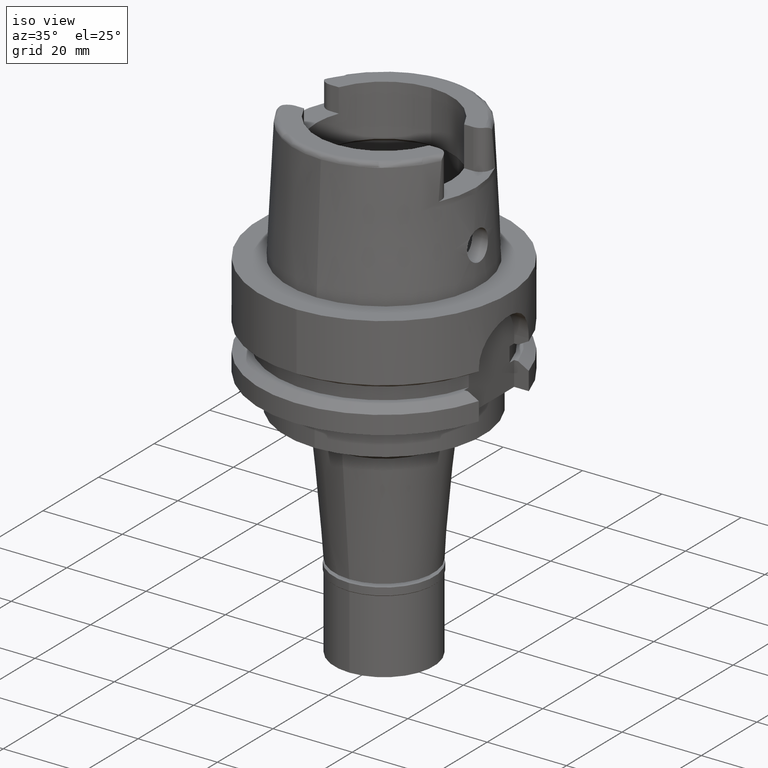
[diagram: clean part render]
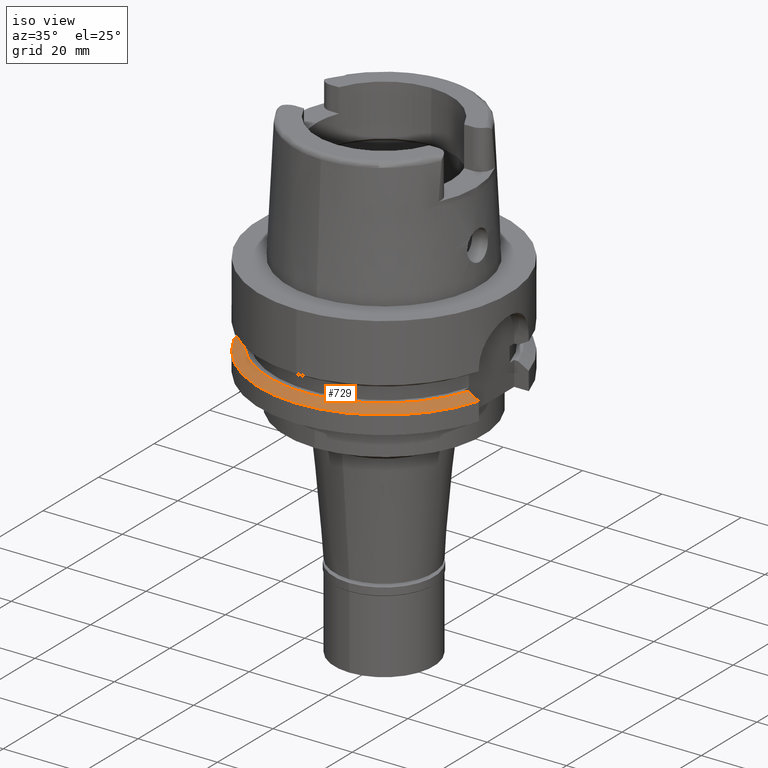
[diagram: same view with one face highlighted and labeled with its STEP entity id]
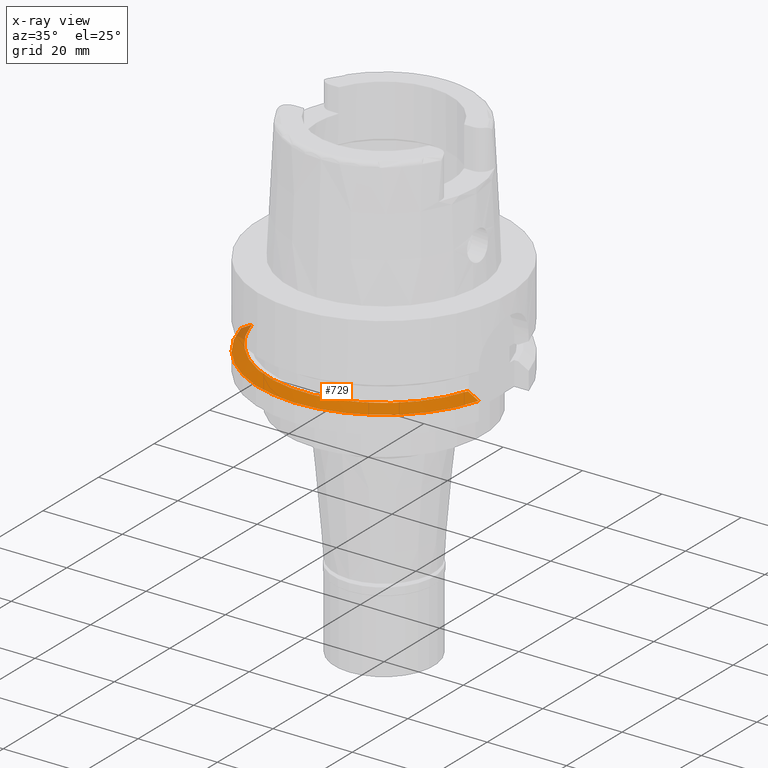
[diagram: x-ray of the same camera — body ghosted, the highlighted face saturated]
A machine part, iso view. The second image highlights one B-rep face of the part: STEP entity #729.
The next image is the same camera in x-ray: the body ghosted, the highlighted face saturated — about 3% of this face is hidden behind the body in this view.
In plain terms, the highlighted conical surface has half-angle 60 deg.
Its self-contained STEP definition (entity closure, byte-faithful):
#170 = CIRCLE ( 'NONE', #2266, 31.49999999999999645 ) ;
#194 = EDGE_CURVE ( 'NONE', #978, #3085, #2601, .T. ) ;
#299 = AXIS2_PLACEMENT_3D ( 'NONE', #4026, #2784, #3613 ) ;
#309 = CARTESIAN_POINT ( 'NONE',  ( 30.18691769625000276, -9.000000000000000000, -21.37749907476000288 ) ) ;
#335 = DIRECTION ( 'NONE',  ( 0.0000000000000000000, 0.0000000000000000000, -1.000000000000000000 ) ) ;
#375 = ORIENTED_EDGE ( 'NONE', *, *, #444, .T. ) ;
#444 = EDGE_CURVE ( 'NONE', #4628, #978, #3105, .T. ) ;
#568 = VERTEX_POINT ( 'NONE', #3467 ) ;
#729 = ADVANCED_FACE ( 'NONE', ( #880 ), #2808, .T. ) ;
#880 = FACE_OUTER_BOUND ( 'NONE', #5071, .T. ) ;
#978 = VERTEX_POINT ( 'NONE', #4400 ) ;
#1101 = AXIS2_PLACEMENT_3D ( 'NONE', #4348, #3500, #3906 ) ;
#1489 = CARTESIAN_POINT ( 'NONE',  ( -28.63001145662487090, -8.000000285188015425, -20.35313944406881603 ) ) ;
#1522 = CARTESIAN_POINT ( 'NONE',  ( 27.46035345827000285, -9.000000000000000000, -19.87500000000000000 ) ) ;
#1894 = CARTESIAN_POINT ( 'NONE',  ( -30.46719534849999889, -8.000000474759998426, -21.37750338473999889 ) ) ;
#2049 = CARTESIAN_POINT ( 'NONE',  ( 28.33125882530185891, -8.999998539895418759, -20.35280923421937871 ) ) ;
#2142 = ORIENTED_EDGE ( 'NONE', *, *, #3494, .F. ) ;
#2266 = AXIS2_PLACEMENT_3D ( 'NONE', #3339, #335, #5509 ) ;
#2319 = CARTESIAN_POINT ( 'NONE',  ( -27.76816325791000040, -8.000000142448998375, -19.87500000000000000 ) ) ;
#2601 = B_SPLINE_CURVE_WITH_KNOTS ( 'NONE', 3,
 ( #2319, #1489, #5415, #1894 ),
 .UNSPECIFIED., .F., .F.,
 ( 4, 4 ),
 ( 0.0000000000000000000, 1.000000000000000000 ),
 .UNSPECIFIED. ) ;
#2784 = DIRECTION ( 'NONE',  ( 0.0000000000000000000, 0.0000000000000000000, -1.000000000000000000 ) ) ;
#2808 = CONICAL_SURFACE ( 'NONE', #1101, 30.19879763209999979, 1.047197551196400456 ) ;
#2957 = EDGE_CURVE ( 'NONE', #568, #4628, #3048, .T. ) ;
#3048 = B_SPLINE_CURVE_WITH_KNOTS ( 'NONE', 3,
 ( #309, #5420, #2049, #1522 ),
 .UNSPECIFIED., .F., .F.,
 ( 4, 4 ),
 ( 0.0000000000000000000, 1.000000000000000000 ),
 .UNSPECIFIED. ) ;
#3085 = VERTEX_POINT ( 'NONE', #4253 ) ;
#3105 = CIRCLE ( 'NONE', #299, 28.89759526419000224 ) ;
#3339 = CARTESIAN_POINT ( 'NONE',  ( 0.0000000000000000000, 0.0000000000000000000, -21.37749907476000288 ) ) ;
#3467 = CARTESIAN_POINT ( 'NONE',  ( 30.18691769625000276, -9.000000000000000000, -21.37749907476000288 ) ) ;
#3494 = EDGE_CURVE ( 'NONE', #568, #3085, #170, .T. ) ;
#3500 = DIRECTION ( 'NONE',  ( 0.0000000000000000000, 0.0000000000000000000, -1.000000000000000000 ) ) ;
#3613 = DIRECTION ( 'NONE',  ( 0.0000000000000000000, -1.000000000000000000, 0.0000000000000000000 ) ) ;
#3885 = ORIENTED_EDGE ( 'NONE', *, *, #194, .T. ) ;
#3906 = DIRECTION ( 'NONE',  ( 0.0000000000000000000, -1.000000000000000000, 0.0000000000000000000 ) ) ;
#4026 = CARTESIAN_POINT ( 'NONE',  ( 0.0000000000000000000, 0.0000000000000000000, -19.87500000000000000 ) ) ;
#4253 = CARTESIAN_POINT ( 'NONE',  ( -30.46719534849999889, -8.000000474759998426, -21.37750338473999889 ) ) ;
#4348 = CARTESIAN_POINT ( 'NONE',  ( 0.0000000000000000000, 0.0000000000000000000, -20.62624953738000144 ) ) ;
#4400 = CARTESIAN_POINT ( 'NONE',  ( -27.76816325791000040, -8.000000142448998375, -19.87500000000000000 ) ) ;
#4628 = VERTEX_POINT ( 'NONE', #5480 ) ;
#4698 = ORIENTED_EDGE ( 'NONE', *, *, #2957, .T. ) ;
#5071 = EDGE_LOOP ( 'NONE', ( #3885, #2142, #4698, #375 ) ) ;
#5415 = CARTESIAN_POINT ( 'NONE',  ( -29.52968304780166875, -8.000000949204427059, -20.85397312548333559 ) ) ;
#5420 = CARTESIAN_POINT ( 'NONE',  ( 29.24010042456799852, -8.999999707996533260, -20.85364080795996600 ) ) ;
#5480 = CARTESIAN_POINT ( 'NONE',  ( 27.46035345827000285, -9.000000000000000000, -19.87500000000000000 ) ) ;
#5509 = DIRECTION ( 'NONE',  ( 0.9583148474999051425, -0.2857142857143015191, 0.0000000000000000000 ) ) ;